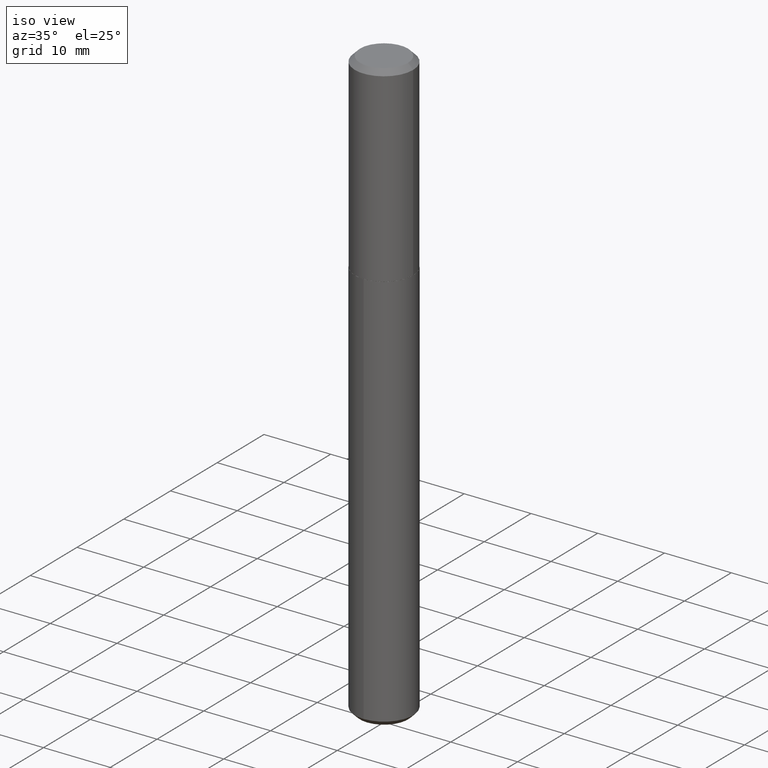
[diagram: clean part render]
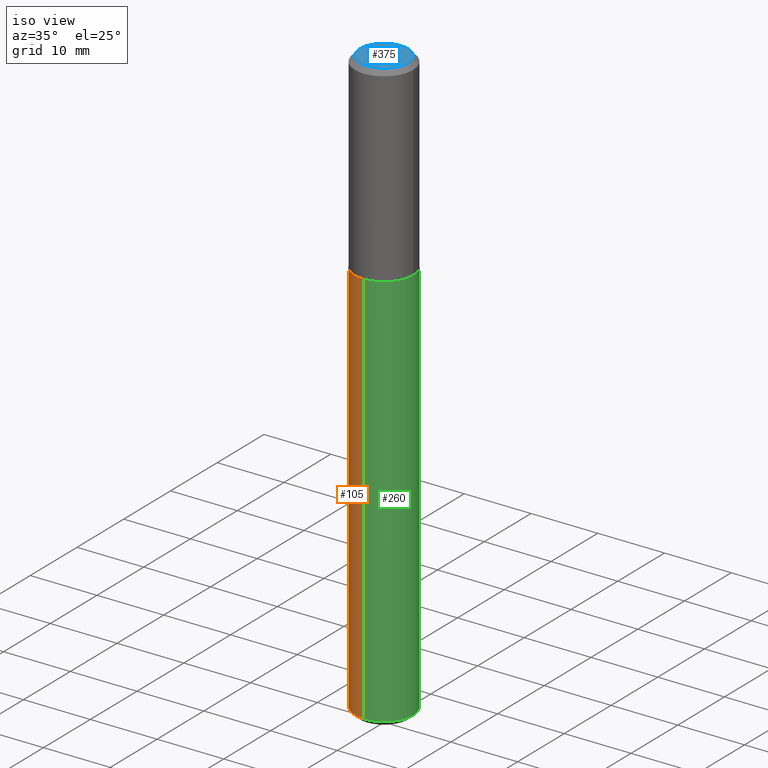
[diagram: same view with three faces highlighted in distinct colors, each labeled with its STEP entity id]
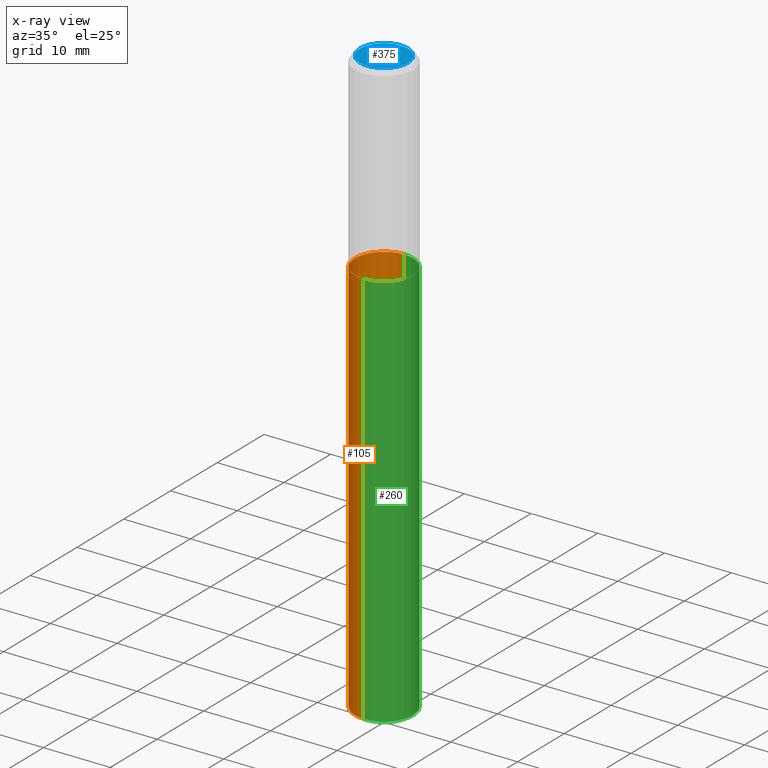
[diagram: x-ray of the same camera — body ghosted, the three highlighted faces saturated]
A machine part, iso view with three faces highlighted in distinct colors.
The next image is the same camera in x-ray (body ghosted, the three faces saturated) — at least one of them is partly hidden behind the body in this view.
Their STEP definitions:

[orange] entity #105 — the highlighted cylindrical surface (edge-blend (fillet) strip) has radius 4.3663 mm, axis along (-0, 0, 1).
#4 = CARTESIAN_POINT ( 'NONE',  ( -1.200371284294241631E-15, -0.1719000000000039108, -1.124999999999999334 ) ) ;
#15 = DIRECTION ( 'NONE',  ( -2.445601401447863841E-29, 3.491291454880066432E-15, 1.000000000000000000 ) ) ;
#19 = AXIS2_PLACEMENT_3D ( 'NONE', #83, #15, #273 ) ;
#26 = LINE ( 'NONE', #398, #181 ) ;
#29 = EDGE_CURVE ( 'NONE', #266, #111, #126, .T. ) ;
#32 = AXIS2_PLACEMENT_3D ( 'NONE', #161, #60, #351 ) ;
#37 = ORIENTED_EDGE ( 'NONE', *, *, #305, .T. ) ;
#41 = ORIENTED_EDGE ( 'NONE', *, *, #29, .T. ) ;
#46 = EDGE_LOOP ( 'NONE', ( #104, #41, #37, #393 ) ) ;
#60 = DIRECTION ( 'NONE',  ( -2.445601401447863841E-29, 3.491291454880066432E-15, 1.000000000000000000 ) ) ;
#61 = VERTEX_POINT ( 'NONE', #81 ) ;
#63 = FACE_OUTER_BOUND ( 'NONE', #46, .T. ) ;
#81 = CARTESIAN_POINT ( 'NONE',  ( 1.221422962771697200E-15, 0.1718999999999960560, -1.125000000000000444 ) ) ;
#83 = CARTESIAN_POINT ( 'NONE',  ( 8.486087693353520127E-29, -1.211499496789229457E-14, -3.469999999999999751 ) ) ;
#88 = CIRCLE ( 'NONE', #32, 0.1718999999999999695 ) ;
#96 = CYLINDRICAL_SURFACE ( 'NONE', #195, 0.1718999999999999695 ) ;
#104 = ORIENTED_EDGE ( 'NONE', *, *, #230, .F. ) ;
#105 = ADVANCED_FACE ( 'NONE', ( #63 ), #96, .T. ) ;
#107 = DIRECTION ( 'NONE',  ( -2.445601401447864121E-29, 3.491291454880066432E-15, 1.000000000000000000 ) ) ;
#111 = VERTEX_POINT ( 'NONE', #125 ) ;
#125 = CARTESIAN_POINT ( 'NONE',  ( -1.200371284294184636E-15, -0.1719000000000121819, -3.469999999999999307 ) ) ;
#126 = CIRCLE ( 'NONE', #19, 0.1718999999999999695 ) ;
#127 = DIRECTION ( 'NONE',  ( -6.982962677686266711E-15, -1.000000000000000000, 3.178415350394722068E-15 ) ) ;
#157 = EDGE_CURVE ( 'NONE', #61, #198, #88, .T. ) ;
#161 = CARTESIAN_POINT ( 'NONE',  ( 2.751152406958278111E-29, -3.927916506198538435E-15, -1.124999999999999778 ) ) ;
#174 = DIRECTION ( 'NONE',  ( -2.445601401447864121E-29, 3.491291454880066432E-15, 1.000000000000000000 ) ) ;
#181 = VECTOR ( 'NONE', #174, 39.37007874015748143 ) ;
#195 = AXIS2_PLACEMENT_3D ( 'NONE', #386, #317, #127 ) ;
#198 = VERTEX_POINT ( 'NONE', #4 ) ;
#230 = EDGE_CURVE ( 'NONE', #266, #61, #26, .T. ) ;
#266 = VERTEX_POINT ( 'NONE', #327 ) ;
#273 = DIRECTION ( 'NONE',  ( -6.982962677686266711E-15, -1.000000000000000000, 3.178415350394722068E-15 ) ) ;
#305 = EDGE_CURVE ( 'NONE', #111, #198, #328, .T. ) ;
#317 = DIRECTION ( 'NONE',  ( -2.445601401447863841E-29, 3.491291454880066432E-15, 1.000000000000000000 ) ) ;
#327 = CARTESIAN_POINT ( 'NONE',  ( 1.221422962771696214E-15, 0.1718999999999877848, -3.470000000000000195 ) ) ;
#328 = LINE ( 'NONE', #356, #354 ) ;
#351 = DIRECTION ( 'NONE',  ( -6.982962677686266711E-15, -1.000000000000000000, 3.178415350394722068E-15 ) ) ;
#354 = VECTOR ( 'NONE', #107, 39.37007874015748143 ) ;
#356 = CARTESIAN_POINT ( 'NONE',  ( -1.200371284294241631E-15, -0.1719000000000039108, -1.124999999999999334 ) ) ;
#386 = CARTESIAN_POINT ( 'NONE',  ( 2.751152406958278111E-29, -3.927916506198538435E-15, -1.124999999999999778 ) ) ;
#393 = ORIENTED_EDGE ( 'NONE', *, *, #157, .F. ) ;
#398 = CARTESIAN_POINT ( 'NONE',  ( 1.221422962771639218E-15, 0.1718999999999960560, -1.125000000000000444 ) ) ;

[blue] entity #375 — the highlighted planar face has unit normal (0, -0, -1).
#2 = VERTEX_POINT ( 'NONE', #239 ) ;
#39 = CARTESIAN_POINT ( 'NONE',  ( -0.1418999999999999706, 1.043254624046327412E-15, 9.613477373235591819E-19 ) ) ;
#51 = AXIS2_PLACEMENT_3D ( 'NONE', #73, #326, #335 ) ;
#64 = ORIENTED_EDGE ( 'NONE', *, *, #339, .T. ) ;
#65 = PLANE ( 'NONE',  #51 ) ;
#73 = CARTESIAN_POINT ( 'NONE',  ( -1.175472951769410011E-47, 1.678263842514561342E-33, 4.806738686653359169E-19 ) ) ;
#132 = DIRECTION ( 'NONE',  ( -2.445468806185136597E-29, 3.491481338843145583E-15, 1.000000000000000000 ) ) ;
#153 = AXIS2_PLACEMENT_3D ( 'NONE', #397, #132, #367 ) ;
#171 = DIRECTION ( 'NONE',  ( 1.000000000000000000, -6.982962677686267499E-15, 4.876178056576096757E-29 ) ) ;
#200 = CARTESIAN_POINT ( 'NONE',  ( -2.350945903538820021E-47, 3.356527685029122683E-33, 9.613477373306718338E-19 ) ) ;
#203 = AXIS2_PLACEMENT_3D ( 'NONE', #200, #360, #171 ) ;
#225 = ORIENTED_EDGE ( 'NONE', *, *, #275, .T. ) ;
#239 = CARTESIAN_POINT ( 'NONE',  ( 0.1418999999999999706, -1.128784355933000759E-15, 9.613477373380831974E-19 ) ) ;
#263 = VERTEX_POINT ( 'NONE', #39 ) ;
#275 = EDGE_CURVE ( 'NONE', #263, #2, #410, .T. ) ;
#326 = DIRECTION ( 'NONE',  ( 2.438088387897960049E-29, -3.491481338843145188E-15, -1.000000000000000000 ) ) ;
#335 = DIRECTION ( 'NONE',  ( -1.000000000000000000, 6.982962677686265922E-15, -4.876176775795935793E-29 ) ) ;
#339 = EDGE_CURVE ( 'NONE', #2, #263, #340, .T. ) ;
#340 = CIRCLE ( 'NONE', #153, 0.1418999999999999706 ) ;
#360 = DIRECTION ( 'NONE',  ( -2.445468806185136597E-29, 3.491481338843145583E-15, 1.000000000000000000 ) ) ;
#361 = EDGE_LOOP ( 'NONE', ( #225, #64 ) ) ;
#367 = DIRECTION ( 'NONE',  ( 1.000000000000000000, -6.982962677686267499E-15, 4.876178056576096757E-29 ) ) ;
#375 = ADVANCED_FACE ( 'NONE', ( #389 ), #65, .F. ) ;
#389 = FACE_OUTER_BOUND ( 'NONE', #361, .T. ) ;
#397 = CARTESIAN_POINT ( 'NONE',  ( -2.350945903538820021E-47, 3.356527685029122683E-33, 9.613477373306718338E-19 ) ) ;
#410 = CIRCLE ( 'NONE', #203, 0.1418999999999999706 ) ;

[green] entity #260 — the highlighted cylindrical surface (edge-blend (fillet) strip) has radius 4.3663 mm, axis along (-0, 0, 1).
#4 = CARTESIAN_POINT ( 'NONE',  ( -1.200371284294241631E-15, -0.1719000000000039108, -1.124999999999999334 ) ) ;
#10 = DIRECTION ( 'NONE',  ( -2.445601401447863841E-29, 3.491291454880066432E-15, 1.000000000000000000 ) ) ;
#14 = EDGE_CURVE ( 'NONE', #111, #266, #323, .T. ) ;
#26 = LINE ( 'NONE', #398, #181 ) ;
#47 = DIRECTION ( 'NONE',  ( -2.445601401447863841E-29, 3.491291454880066432E-15, 1.000000000000000000 ) ) ;
#61 = VERTEX_POINT ( 'NONE', #81 ) ;
#81 = CARTESIAN_POINT ( 'NONE',  ( 1.221422962771697200E-15, 0.1718999999999960560, -1.125000000000000444 ) ) ;
#82 = DIRECTION ( 'NONE',  ( -6.982962677686266711E-15, -1.000000000000000000, 3.178415350394722068E-15 ) ) ;
#86 = CIRCLE ( 'NONE', #215, 0.1718999999999999695 ) ;
#107 = DIRECTION ( 'NONE',  ( -2.445601401447864121E-29, 3.491291454880066432E-15, 1.000000000000000000 ) ) ;
#111 = VERTEX_POINT ( 'NONE', #125 ) ;
#125 = CARTESIAN_POINT ( 'NONE',  ( -1.200371284294184636E-15, -0.1719000000000121819, -3.469999999999999307 ) ) ;
#142 = ORIENTED_EDGE ( 'NONE', *, *, #305, .F. ) ;
#160 = AXIS2_PLACEMENT_3D ( 'NONE', #167, #10, #364 ) ;
#165 = ORIENTED_EDGE ( 'NONE', *, *, #320, .F. ) ;
#167 = CARTESIAN_POINT ( 'NONE',  ( 2.751152406958278111E-29, -3.927916506198538435E-15, -1.124999999999999778 ) ) ;
#174 = DIRECTION ( 'NONE',  ( -2.445601401447864121E-29, 3.491291454880066432E-15, 1.000000000000000000 ) ) ;
#181 = VECTOR ( 'NONE', #174, 39.37007874015748143 ) ;
#198 = VERTEX_POINT ( 'NONE', #4 ) ;
#207 = CARTESIAN_POINT ( 'NONE',  ( 2.751152406958278111E-29, -3.927916506198538435E-15, -1.124999999999999778 ) ) ;
#215 = AXIS2_PLACEMENT_3D ( 'NONE', #207, #264, #332 ) ;
#230 = EDGE_CURVE ( 'NONE', #266, #61, #26, .T. ) ;
#260 = ADVANCED_FACE ( 'NONE', ( #329 ), #299, .T. ) ;
#264 = DIRECTION ( 'NONE',  ( -2.445601401447863841E-29, 3.491291454880066432E-15, 1.000000000000000000 ) ) ;
#266 = VERTEX_POINT ( 'NONE', #327 ) ;
#287 = EDGE_LOOP ( 'NONE', ( #369, #293, #165, #142 ) ) ;
#293 = ORIENTED_EDGE ( 'NONE', *, *, #230, .T. ) ;
#299 = CYLINDRICAL_SURFACE ( 'NONE', #160, 0.1718999999999999695 ) ;
#305 = EDGE_CURVE ( 'NONE', #111, #198, #328, .T. ) ;
#320 = EDGE_CURVE ( 'NONE', #198, #61, #86, .T. ) ;
#323 = CIRCLE ( 'NONE', #404, 0.1718999999999999695 ) ;
#327 = CARTESIAN_POINT ( 'NONE',  ( 1.221422962771696214E-15, 0.1718999999999877848, -3.470000000000000195 ) ) ;
#328 = LINE ( 'NONE', #356, #354 ) ;
#329 = FACE_OUTER_BOUND ( 'NONE', #287, .T. ) ;
#332 = DIRECTION ( 'NONE',  ( -6.982962677686266711E-15, -1.000000000000000000, 3.178415350394722068E-15 ) ) ;
#354 = VECTOR ( 'NONE', #107, 39.37007874015748143 ) ;
#356 = CARTESIAN_POINT ( 'NONE',  ( -1.200371284294241631E-15, -0.1719000000000039108, -1.124999999999999334 ) ) ;
#364 = DIRECTION ( 'NONE',  ( -6.982962677686266711E-15, -1.000000000000000000, 3.178415350394722068E-15 ) ) ;
#369 = ORIENTED_EDGE ( 'NONE', *, *, #14, .T. ) ;
#371 = CARTESIAN_POINT ( 'NONE',  ( 8.486087693353520127E-29, -1.211499496789229457E-14, -3.469999999999999751 ) ) ;
#398 = CARTESIAN_POINT ( 'NONE',  ( 1.221422962771639218E-15, 0.1718999999999960560, -1.125000000000000444 ) ) ;
#404 = AXIS2_PLACEMENT_3D ( 'NONE', #371, #47, #82 ) ;